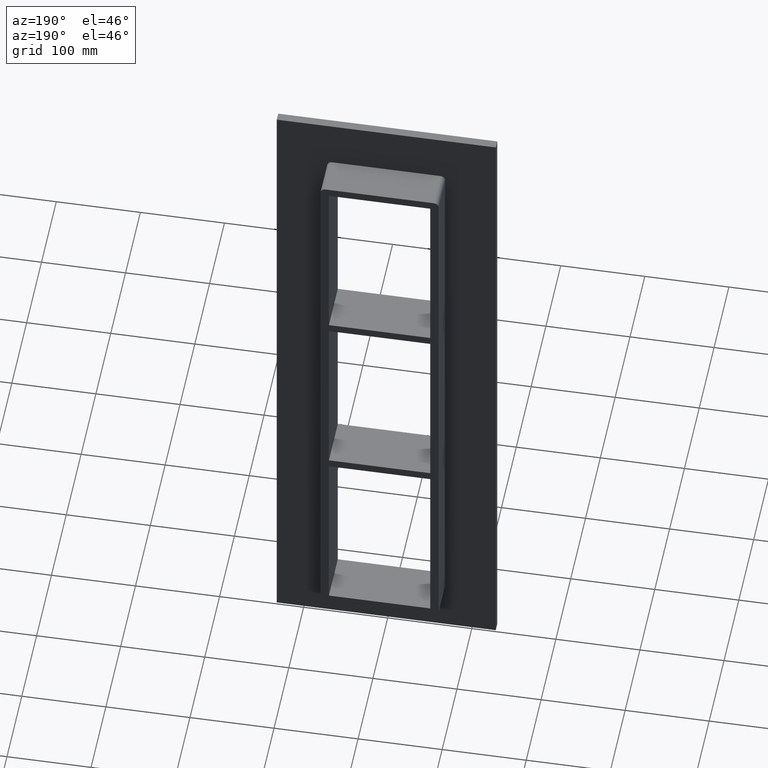
[diagram: clean part render]
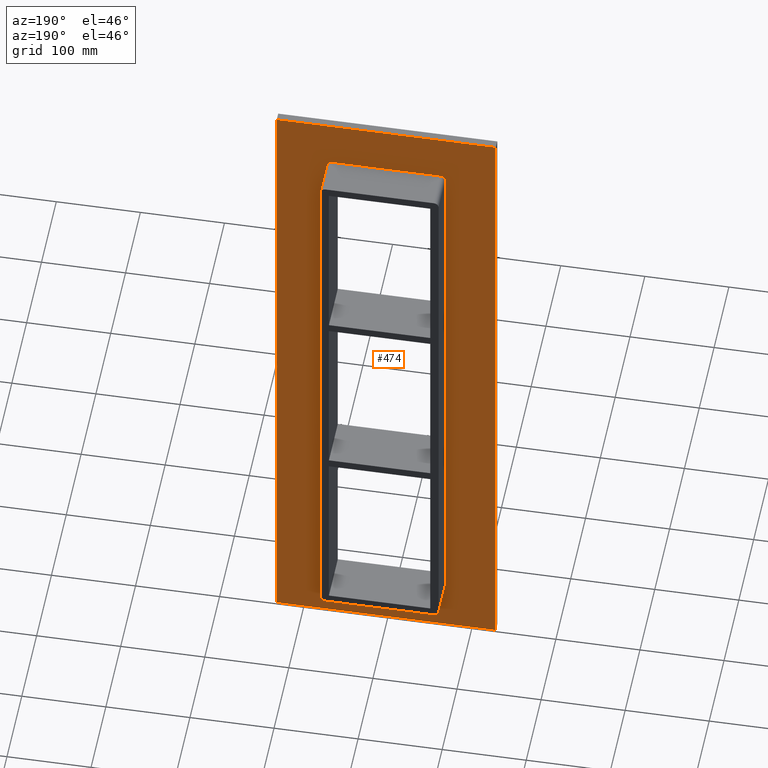
[diagram: same view with one face highlighted and labeled with its STEP entity id]
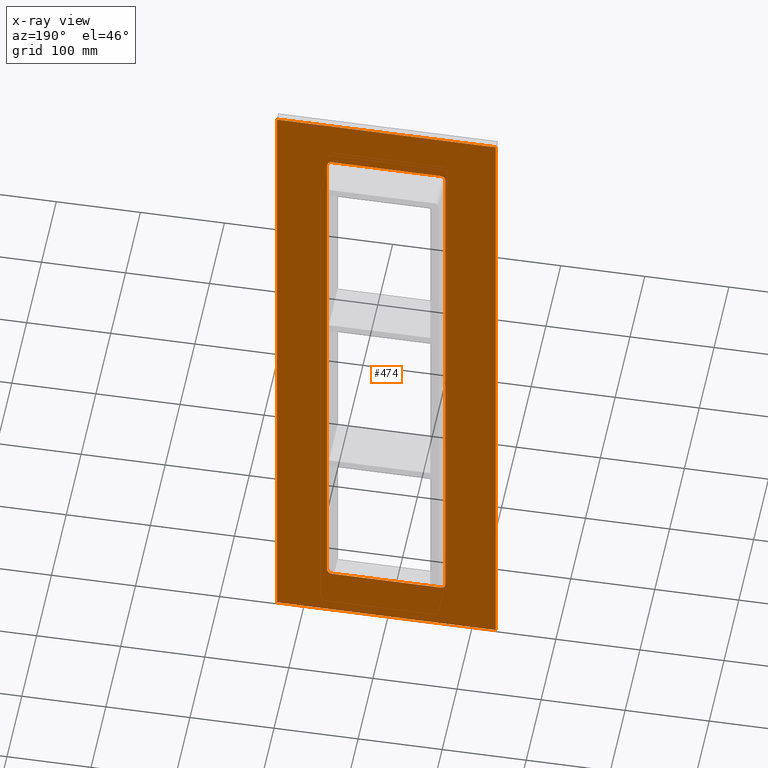
[diagram: x-ray of the same camera — body ghosted, the highlighted face saturated]
A machine part, auxiliary view. The second image highlights one B-rep face of the part: STEP entity #474.
The next image is the same camera in x-ray: the body ghosted, the highlighted face saturated — about 0% of this face is hidden behind the body in this view.
In plain terms, the highlighted planar face has unit normal (0, 1, 0).
Its self-contained STEP definition (entity closure, byte-faithful):
#365=CARTESIAN_POINT('',(0.0,10.0,0.0));
#366=DIRECTION('',(0.0,1.0,0.0));
#367=DIRECTION('',(0.0,0.0,1.0));
#368=AXIS2_PLACEMENT_3D('',#365,#366,#367);
#369=PLANE('',#368);
#370=CARTESIAN_POINT('',(130.25,10.0,-407.00000000000011));
#371=VERTEX_POINT('',#370);
#372=CARTESIAN_POINT('',(-130.25,10.0,-407.00000000000011));
#373=VERTEX_POINT('',#372);
#374=CARTESIAN_POINT('',(130.25,10.0,-407.00000000000011));
#375=DIRECTION('',(-1.0,0.0,0.0));
#376=VECTOR('',#375,260.5);
#377=LINE('',#374,#376);
#378=EDGE_CURVE('',#371,#373,#377,.T.);
#379=ORIENTED_EDGE('',*,*,#378,.T.);
#380=CARTESIAN_POINT('',(-130.25,10.0,407.00000000000011));
#381=VERTEX_POINT('',#380);
#382=CARTESIAN_POINT('',(-130.25,10.0,-407.00000000000011));
#383=DIRECTION('',(0.0,0.0,1.0));
#384=VECTOR('',#383,814.00000000000023);
#385=LINE('',#382,#384);
#386=EDGE_CURVE('',#373,#381,#385,.T.);
#387=ORIENTED_EDGE('',*,*,#386,.T.);
#388=CARTESIAN_POINT('',(130.25,10.0,407.00000000000011));
#389=VERTEX_POINT('',#388);
#390=CARTESIAN_POINT('',(-130.25,10.0,407.00000000000011));
#391=DIRECTION('',(1.0,0.0,0.0));
#392=VECTOR('',#391,260.5);
#393=LINE('',#390,#392);
#394=EDGE_CURVE('',#381,#389,#393,.T.);
#395=ORIENTED_EDGE('',*,*,#394,.T.);
#396=CARTESIAN_POINT('',(130.25,10.0,407.00000000000011));
#397=DIRECTION('',(0.0,0.0,-1.0));
#398=VECTOR('',#397,814.00000000000023);
#399=LINE('',#396,#398);
#400=EDGE_CURVE('',#389,#371,#399,.T.);
#401=ORIENTED_EDGE('',*,*,#400,.T.);
#402=EDGE_LOOP('',(#379,#387,#395,#401));
#403=FACE_OUTER_BOUND('',#402,.T.);
#404=CARTESIAN_POINT('',(64.25,10.0,347.0));
#405=VERTEX_POINT('',#404);
#406=CARTESIAN_POINT('',(70.25,10.0,341.0));
#407=VERTEX_POINT('',#406);
#408=CARTESIAN_POINT('',(64.25,10.0,341.0));
#409=DIRECTION('',(0.0,1.0,0.0));
#410=DIRECTION('',(0.0,0.0,1.0));
#411=AXIS2_PLACEMENT_3D('',#408,#409,#410);
#412=CIRCLE('',#411,6.000000000000014);
#413=EDGE_CURVE('',#405,#407,#412,.T.);
#414=ORIENTED_EDGE('',*,*,#413,.F.);
#415=CARTESIAN_POINT('',(-64.25,10.0,347.0));
#416=VERTEX_POINT('',#415);
#417=CARTESIAN_POINT('',(-64.25,10.0,347.0));
#418=DIRECTION('',(1.0,0.0,0.0));
#419=VECTOR('',#418,128.5);
#420=LINE('',#417,#419);
#421=EDGE_CURVE('',#416,#405,#420,.T.);
#422=ORIENTED_EDGE('',*,*,#421,.F.);
#423=CARTESIAN_POINT('',(-70.25,10.0,341.0));
#424=VERTEX_POINT('',#423);
#425=CARTESIAN_POINT('',(-64.25,10.0,341.0));
#426=DIRECTION('',(0.0,1.0,0.0));
#427=DIRECTION('',(-1.0,0.0,0.0));
#428=AXIS2_PLACEMENT_3D('',#425,#426,#427);
#429=CIRCLE('',#428,6.000000000000014);
#430=EDGE_CURVE('',#424,#416,#429,.T.);
#431=ORIENTED_EDGE('',*,*,#430,.F.);
#432=CARTESIAN_POINT('',(-70.25,10.0,-341.0));
#433=VERTEX_POINT('',#432);
#434=CARTESIAN_POINT('',(-70.25,10.0,-341.0));
#435=DIRECTION('',(0.0,0.0,1.0));
#436=VECTOR('',#435,682.0);
#437=LINE('',#434,#436);
#438=EDGE_CURVE('',#433,#424,#437,.T.);
#439=ORIENTED_EDGE('',*,*,#438,.F.);
#440=CARTESIAN_POINT('',(-64.25,10.0,-346.99999999999994));
#441=VERTEX_POINT('',#440);
#442=CARTESIAN_POINT('',(-64.25,10.0,-341.0));
#443=DIRECTION('',(0.0,1.0,0.0));
#444=DIRECTION('',(0.0,0.0,-1.0));
#445=AXIS2_PLACEMENT_3D('',#442,#443,#444);
#446=CIRCLE('',#445,6.000000000000014);
#447=EDGE_CURVE('',#441,#433,#446,.T.);
#448=ORIENTED_EDGE('',*,*,#447,.F.);
#449=CARTESIAN_POINT('',(64.25,10.0,-346.99999999999994));
#450=VERTEX_POINT('',#449);
#451=CARTESIAN_POINT('',(64.25,10.0,-346.99999999999994));
#452=DIRECTION('',(-1.0,0.0,0.0));
#453=VECTOR('',#452,128.5);
#454=LINE('',#451,#453);
#455=EDGE_CURVE('',#450,#441,#454,.T.);
#456=ORIENTED_EDGE('',*,*,#455,.F.);
#457=CARTESIAN_POINT('',(70.25,10.0,-341.0));
#458=VERTEX_POINT('',#457);
#459=CARTESIAN_POINT('',(64.25,10.0,-341.0));
#460=DIRECTION('',(0.0,1.0,0.0));
#461=DIRECTION('',(1.0,0.0,0.0));
#462=AXIS2_PLACEMENT_3D('',#459,#460,#461);
#463=CIRCLE('',#462,6.000000000000014);
#464=EDGE_CURVE('',#458,#450,#463,.T.);
#465=ORIENTED_EDGE('',*,*,#464,.F.);
#466=CARTESIAN_POINT('',(70.25,10.0,341.0));
#467=DIRECTION('',(0.0,0.0,-1.0));
#468=VECTOR('',#467,682.0);
#469=LINE('',#466,#468);
#470=EDGE_CURVE('',#407,#458,#469,.T.);
#471=ORIENTED_EDGE('',*,*,#470,.F.);
#472=EDGE_LOOP('',(#414,#422,#431,#439,#448,#456,#465,#471));
#473=FACE_BOUND('',#472,.T.);
#474=ADVANCED_FACE('',(#403,#473),#369,.T.);